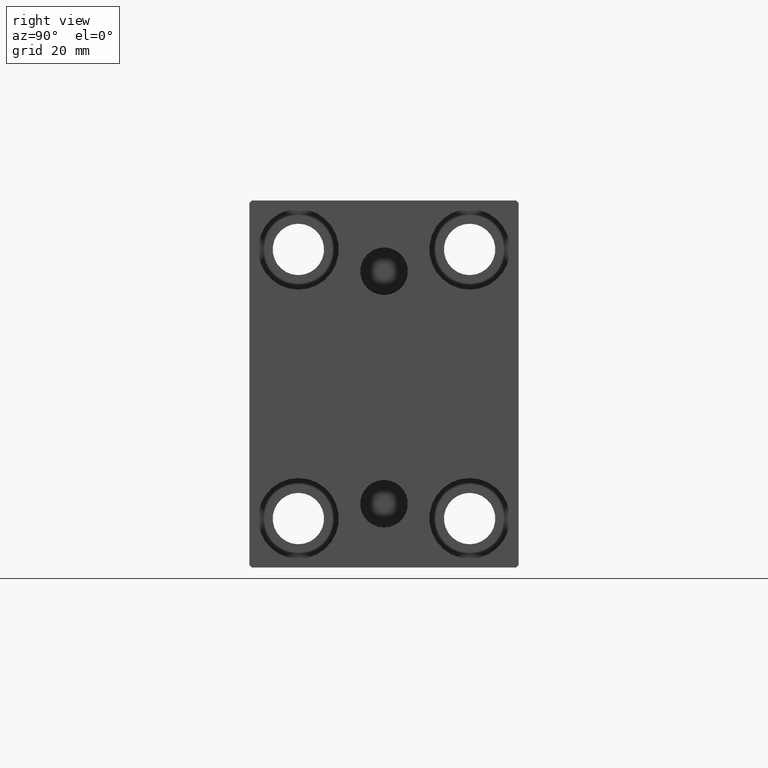
[diagram: clean part render]
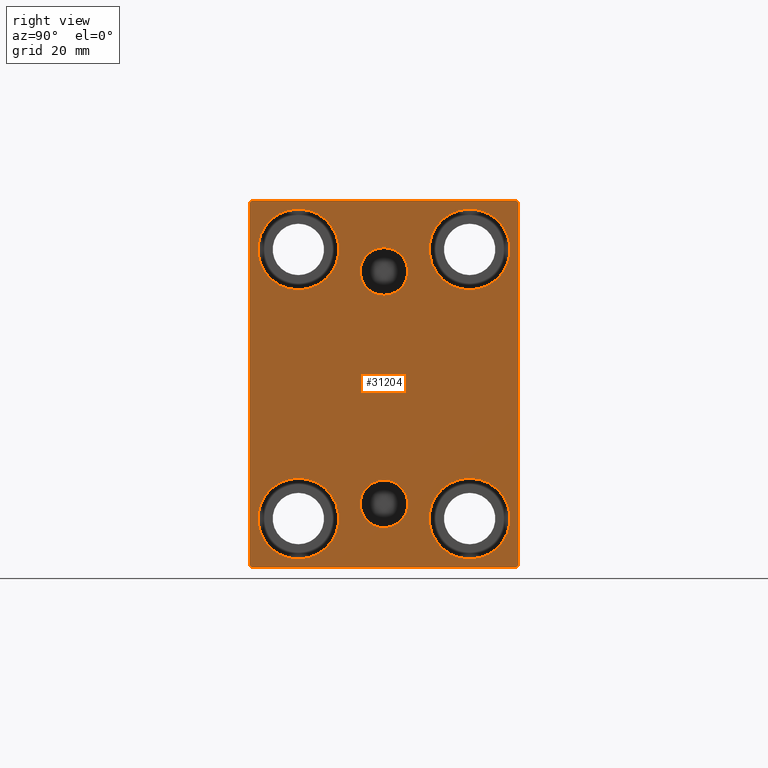
[diagram: same view with one face highlighted and labeled with its STEP entity id]
A machine part, right view. The second image highlights one B-rep face of the part: STEP entity #31204.
In plain terms, the highlighted planar face has unit normal (1, 0, 0).
Its self-contained STEP definition (entity closure, byte-faithful):
#735 = CARTESIAN_POINT ( 'NONE',  ( 105.0000000000000000, -2.976515330312223406E-15, 27.86000000000000654 ) ) ;
#1079 = VERTEX_POINT ( 'NONE', #23952 ) ;
#1270 = ORIENTED_EDGE ( 'NONE', *, *, #16971, .T. ) ;
#1329 = FACE_BOUND ( 'NONE', #34481, .T. ) ;
#1379 = VERTEX_POINT ( 'NONE', #735 ) ;
#1629 = DIRECTION ( 'NONE',  ( -1.000000000000000000, -0.000000000000000000, -0.000000000000000000 ) ) ;
#2001 = EDGE_CURVE ( 'NONE', #34695, #8156, #30826, .T. ) ;
#2019 = DIRECTION ( 'NONE',  ( 0.000000000000000000, 0.000000000000000000, 1.000000000000000000 ) ) ;
#2160 = DIRECTION ( 'NONE',  ( -1.000000000000000000, -0.000000000000000000, -0.000000000000000000 ) ) ;
#2273 = VERTEX_POINT ( 'NONE', #34248 ) ;
#2299 = VERTEX_POINT ( 'NONE', #7359 ) ;
#2326 = CARTESIAN_POINT ( 'NONE',  ( 105.0000000000000000, -27.00000000000001776, -37.50000000000000000 ) ) ;
#2728 = ORIENTED_EDGE ( 'NONE', *, *, #7451, .T. ) ;
#3011 = VERTEX_POINT ( 'NONE', #3513 ) ;
#3021 = AXIS2_PLACEMENT_3D ( 'NONE', #34610, #38127, #7933 ) ;
#3031 = LINE ( 'NONE', #9848, #29011 ) ;
#3513 = CARTESIAN_POINT ( 'NONE',  ( 105.0000000000000000, 27.49999999999999645, 37.00000000000001421 ) ) ;
#3609 = DIRECTION ( 'NONE',  ( -0.000000000000000000, 0.7071067811865474617, 0.7071067811865474617 ) ) ;
#3823 = VECTOR ( 'NONE', #43196, 1000.000000000000000 ) ;
#4236 = CIRCLE ( 'NONE', #40132, 8.250000000000000000 ) ;
#4271 = VECTOR ( 'NONE', #39803, 1000.000000000000000 ) ;
#4377 = ORIENTED_EDGE ( 'NONE', *, *, #29701, .F. ) ;
#4389 = DIRECTION ( 'NONE',  ( -1.000000000000000000, -0.000000000000000000, -0.000000000000000000 ) ) ;
#4403 = VERTEX_POINT ( 'NONE', #7779 ) ;
#4490 = AXIS2_PLACEMENT_3D ( 'NONE', #33883, #16915, #16473 ) ;
#5192 = VERTEX_POINT ( 'NONE', #12503 ) ;
#5251 = EDGE_CURVE ( 'NONE', #34088, #37098, #3031, .T. ) ;
#5339 = DIRECTION ( 'NONE',  ( -1.000000000000000000, -0.000000000000000000, -0.000000000000000000 ) ) ;
#5495 = DIRECTION ( 'NONE',  ( 0.000000000000000000, -0.7071067811865474617, -0.7071067811865474617 ) ) ;
#5705 = LINE ( 'NONE', #8146, #15459 ) ;
#5813 = DIRECTION ( 'NONE',  ( 0.000000000000000000, 0.000000000000000000, -1.000000000000000000 ) ) ;
#6512 = EDGE_CURVE ( 'NONE', #2299, #13516, #36083, .T. ) ;
#7359 = CARTESIAN_POINT ( 'NONE',  ( 105.0000000000000000, 17.50000000000000355, 35.74999999999999289 ) ) ;
#7451 = EDGE_CURVE ( 'NONE', #9869, #43294, #12878, .T. ) ;
#7779 = CARTESIAN_POINT ( 'NONE',  ( 105.0000000000000000, -3.571693674697836683E-15, 18.14000000000000767 ) ) ;
#7933 = DIRECTION ( 'NONE',  ( 0.000000000000000000, 0.000000000000000000, -1.000000000000000000 ) ) ;
#7987 = CIRCLE ( 'NONE', #14354, 8.249999999999992895 ) ;
#8146 = CARTESIAN_POINT ( 'NONE',  ( 105.0000000000000000, -32.25000000000000000, 32.25000000000000000 ) ) ;
#8156 = VERTEX_POINT ( 'NONE', #10918 ) ;
#8463 = CARTESIAN_POINT ( 'NONE',  ( 105.0000000000000000, 3.000384657911015074E-15, -29.35999999999999233 ) ) ;
#8779 = VECTOR ( 'NONE', #26067, 1000.000000000000000 ) ;
#8854 = DIRECTION ( 'NONE',  ( 0.000000000000000000, 0.000000000000000000, 1.000000000000000000 ) ) ;
#9110 = ORIENTED_EDGE ( 'NONE', *, *, #10184, .T. ) ;
#9146 = CIRCLE ( 'NONE', #24636, 8.250000000000000000 ) ;
#9387 = ORIENTED_EDGE ( 'NONE', *, *, #19800, .T. ) ;
#9388 = LINE ( 'NONE', #29443, #4271 ) ;
#9421 = CARTESIAN_POINT ( 'NONE',  ( 105.0000000000000000, 17.50000000000000355, 27.49999999999999645 ) ) ;
#9761 = EDGE_CURVE ( 'NONE', #30367, #2273, #34734, .T. ) ;
#9848 = CARTESIAN_POINT ( 'NONE',  ( 105.0000000000000000, -27.50000000000000355, -37.50000000000000000 ) ) ;
#9869 = VERTEX_POINT ( 'NONE', #17371 ) ;
#9966 = CARTESIAN_POINT ( 'NONE',  ( 105.0000000000000000, 17.50000000000000355, 19.25000000000000000 ) ) ;
#10044 = ORIENTED_EDGE ( 'NONE', *, *, #26462, .F. ) ;
#10045 = ORIENTED_EDGE ( 'NONE', *, *, #42102, .T. ) ;
#10184 = EDGE_CURVE ( 'NONE', #2273, #30367, #7987, .T. ) ;
#10422 = DIRECTION ( 'NONE',  ( -1.000000000000000000, -0.000000000000000000, -0.000000000000000000 ) ) ;
#10614 = EDGE_CURVE ( 'NONE', #42238, #3011, #36374, .T. ) ;
#10872 = DIRECTION ( 'NONE',  ( 0.000000000000000000, 0.000000000000000000, 1.000000000000000000 ) ) ;
#10918 = CARTESIAN_POINT ( 'NONE',  ( 105.0000000000000000, -27.50000000000000355, -37.00000000000000000 ) ) ;
#11231 = FACE_BOUND ( 'NONE', #16061, .T. ) ;
#11304 = DIRECTION ( 'NONE',  ( 0.000000000000000000, 0.000000000000000000, 1.000000000000000000 ) ) ;
#11869 = EDGE_CURVE ( 'NONE', #13516, #2299, #39706, .T. ) ;
#11883 = FACE_BOUND ( 'NONE', #33815, .T. ) ;
#11898 = CIRCLE ( 'NONE', #24603, 4.859999999999999432 ) ;
#11945 = EDGE_CURVE ( 'NONE', #43294, #9869, #17913, .T. ) ;
#12103 = PLANE ( 'NONE',  #3021 ) ;
#12503 = CARTESIAN_POINT ( 'NONE',  ( 105.0000000000000000, -17.50000000000000355, -35.75000000000000711 ) ) ;
#12878 = CIRCLE ( 'NONE', #33991, 8.250000000000000000 ) ;
#13290 = CARTESIAN_POINT ( 'NONE',  ( 105.0000000000000000, 17.49999999999999645, -27.50000000000000355 ) ) ;
#13469 = ORIENTED_EDGE ( 'NONE', *, *, #11869, .T. ) ;
#13516 = VERTEX_POINT ( 'NONE', #9966 ) ;
#14196 = CARTESIAN_POINT ( 'NONE',  ( 105.0000000000000000, 17.50000000000000355, 27.49999999999999645 ) ) ;
#14354 = AXIS2_PLACEMENT_3D ( 'NONE', #31811, #1629, #21475 ) ;
#14609 = DIRECTION ( 'NONE',  ( -1.000000000000000000, -0.000000000000000000, -0.000000000000000000 ) ) ;
#14939 = ORIENTED_EDGE ( 'NONE', *, *, #10614, .T. ) ;
#15414 = FACE_BOUND ( 'NONE', #42286, .T. ) ;
#15459 = VECTOR ( 'NONE', #5495, 1000.000000000000114 ) ;
#15931 = CARTESIAN_POINT ( 'NONE',  ( 105.0000000000000000, -32.25000000000038369, -32.24999999999949551 ) ) ;
#16061 = EDGE_LOOP ( 'NONE', ( #10044, #27662 ) ) ;
#16473 = DIRECTION ( 'NONE',  ( 0.000000000000000000, 0.000000000000000000, -1.000000000000000000 ) ) ;
#16915 = DIRECTION ( 'NONE',  ( 1.000000000000000000, 0.000000000000000000, 0.000000000000000000 ) ) ;
#16952 = CARTESIAN_POINT ( 'NONE',  ( 105.0000000000000000, -27.50000000000000355, 37.50000000000000000 ) ) ;
#16971 = EDGE_CURVE ( 'NONE', #1079, #31392, #25848, .T. ) ;
#17371 = CARTESIAN_POINT ( 'NONE',  ( 105.0000000000000000, 17.49999999999999645, -35.75000000000000711 ) ) ;
#17840 = DIRECTION ( 'NONE',  ( 0.000000000000000000, 0.000000000000000000, 1.000000000000000000 ) ) ;
#17913 = CIRCLE ( 'NONE', #29906, 8.250000000000000000 ) ;
#18219 = VERTEX_POINT ( 'NONE', #8463 ) ;
#18292 = EDGE_CURVE ( 'NONE', #37098, #42238, #20364, .T. ) ;
#18768 = CARTESIAN_POINT ( 'NONE',  ( 105.0000000000000000, 3.000384657911015074E-15, -24.49999999999999289 ) ) ;
#19042 = DIRECTION ( 'NONE',  ( 1.000000000000000000, 0.000000000000000000, 0.000000000000000000 ) ) ;
#19186 = DIRECTION ( 'NONE',  ( 0.000000000000000000, 0.000000000000000000, 1.000000000000000000 ) ) ;
#19800 = EDGE_CURVE ( 'NONE', #42519, #5192, #9146, .T. ) ;
#20290 = CARTESIAN_POINT ( 'NONE',  ( 105.0000000000000000, 27.50000000000000355, -37.50000000000000000 ) ) ;
#20364 = LINE ( 'NONE', #33796, #22487 ) ;
#20633 = ORIENTED_EDGE ( 'NONE', *, *, #6512, .T. ) ;
#21174 = FACE_BOUND ( 'NONE', #38211, .T. ) ;
#21472 = DIRECTION ( 'NONE',  ( -1.000000000000000000, -0.000000000000000000, -0.000000000000000000 ) ) ;
#21475 = DIRECTION ( 'NONE',  ( 0.000000000000000000, 0.000000000000000000, 1.000000000000000000 ) ) ;
#21905 = VECTOR ( 'NONE', #27515, 1000.000000000000000 ) ;
#22040 = FACE_BOUND ( 'NONE', #40020, .T. ) ;
#22074 = DIRECTION ( 'NONE',  ( 1.000000000000000000, 0.000000000000000000, -0.000000000000000000 ) ) ;
#22487 = VECTOR ( 'NONE', #3609, 1000.000000000000114 ) ;
#22776 = EDGE_CURVE ( 'NONE', #18219, #29238, #11898, .T. ) ;
#23294 = ORIENTED_EDGE ( 'NONE', *, *, #22776, .F. ) ;
#23513 = CIRCLE ( 'NONE', #4490, 4.859999999999999432 ) ;
#23826 = EDGE_CURVE ( 'NONE', #31392, #34695, #5705, .T. ) ;
#23952 = CARTESIAN_POINT ( 'NONE',  ( 105.0000000000000000, 26.99999999999999645, 37.50000000000000711 ) ) ;
#24372 = EDGE_CURVE ( 'NONE', #5192, #42519, #4236, .T. ) ;
#24603 = AXIS2_PLACEMENT_3D ( 'NONE', #18768, #22074, #2019 ) ;
#24633 = ORIENTED_EDGE ( 'NONE', *, *, #18292, .T. ) ;
#24636 = AXIS2_PLACEMENT_3D ( 'NONE', #30505, #14609, #10872 ) ;
#24673 = CARTESIAN_POINT ( 'NONE',  ( 105.0000000000000000, -17.49999999999999645, 27.49999999999999645 ) ) ;
#25196 = ORIENTED_EDGE ( 'NONE', *, *, #2001, .T. ) ;
#25622 = AXIS2_PLACEMENT_3D ( 'NONE', #24673, #4389, #17840 ) ;
#25848 = LINE ( 'NONE', #39493, #37119 ) ;
#26020 = EDGE_CURVE ( 'NONE', #3011, #1079, #9388, .T. ) ;
#26067 = DIRECTION ( 'NONE',  ( -0.000000000000000000, 0.7071067811865378028, -0.7071067811865573427 ) ) ;
#26286 = LINE ( 'NONE', #15931, #8779 ) ;
#26288 = CARTESIAN_POINT ( 'NONE',  ( 105.0000000000000000, -17.49999999999999645, 35.74999999999999289 ) ) ;
#26462 = EDGE_CURVE ( 'NONE', #4403, #1379, #40161, .T. ) ;
#26584 = EDGE_LOOP ( 'NONE', ( #1270, #31283, #25196, #10045, #41806, #24633, #14939, #36080 ) ) ;
#27515 = DIRECTION ( 'NONE',  ( 0.000000000000000000, 0.000000000000000000, -1.000000000000000000 ) ) ;
#27662 = ORIENTED_EDGE ( 'NONE', *, *, #35051, .F. ) ;
#28042 = CARTESIAN_POINT ( 'NONE',  ( 105.0000000000000000, -27.00000000000000355, 37.50000000000000000 ) ) ;
#28178 = CARTESIAN_POINT ( 'NONE',  ( 105.0000000000000000, 17.49999999999999645, -19.25000000000000355 ) ) ;
#28908 = CARTESIAN_POINT ( 'NONE',  ( 105.0000000000000000, -17.50000000000000355, -27.50000000000000355 ) ) ;
#29011 = VECTOR ( 'NONE', #36963, 1000.000000000000000 ) ;
#29040 = DIRECTION ( 'NONE',  ( -1.000000000000000000, -0.000000000000000000, -0.000000000000000000 ) ) ;
#29238 = VERTEX_POINT ( 'NONE', #33607 ) ;
#29443 = CARTESIAN_POINT ( 'NONE',  ( 105.0000000000000000, 32.24999999999981526, 32.25000000000025580 ) ) ;
#29701 = EDGE_CURVE ( 'NONE', #29238, #18219, #37462, .T. ) ;
#29906 = AXIS2_PLACEMENT_3D ( 'NONE', #32348, #2160, #42479 ) ;
#30367 = VERTEX_POINT ( 'NONE', #26288 ) ;
#30505 = CARTESIAN_POINT ( 'NONE',  ( 105.0000000000000000, -17.50000000000000355, -27.50000000000000355 ) ) ;
#30826 = LINE ( 'NONE', #16952, #21905 ) ;
#31128 = AXIS2_PLACEMENT_3D ( 'NONE', #38572, #41886, #19186 ) ;
#31152 = AXIS2_PLACEMENT_3D ( 'NONE', #14196, #21472, #11304 ) ;
#31204 = ADVANCED_FACE ( 'NONE', ( #11231, #11883, #1329, #21174, #22040, #15414, #42295 ), #12103, .T. ) ;
#31283 = ORIENTED_EDGE ( 'NONE', *, *, #23826, .T. ) ;
#31392 = VERTEX_POINT ( 'NONE', #28042 ) ;
#31811 = CARTESIAN_POINT ( 'NONE',  ( 105.0000000000000000, -17.49999999999999645, 27.49999999999999645 ) ) ;
#32348 = CARTESIAN_POINT ( 'NONE',  ( 105.0000000000000000, 17.49999999999999645, -27.50000000000000355 ) ) ;
#32410 = CARTESIAN_POINT ( 'NONE',  ( 105.0000000000000000, 27.50000000000000355, -36.99999999999998579 ) ) ;
#33223 = DIRECTION ( 'NONE',  ( 0.000000000000000000, 0.000000000000000000, 1.000000000000000000 ) ) ;
#33276 = CARTESIAN_POINT ( 'NONE',  ( 105.0000000000000000, -27.50000000000000355, 37.00000000000000000 ) ) ;
#33566 = ORIENTED_EDGE ( 'NONE', *, *, #9761, .T. ) ;
#33607 = CARTESIAN_POINT ( 'NONE',  ( 105.0000000000000000, 3.595563002296627957E-15, -19.63999999999999346 ) ) ;
#33796 = CARTESIAN_POINT ( 'NONE',  ( 105.0000000000000000, 32.24999999999999289, -32.24999999999999289 ) ) ;
#33815 = EDGE_LOOP ( 'NONE', ( #23294, #4377 ) ) ;
#33883 = CARTESIAN_POINT ( 'NONE',  ( 105.0000000000000000, -3.571693674697836683E-15, 23.00000000000000711 ) ) ;
#33991 = AXIS2_PLACEMENT_3D ( 'NONE', #13290, #10422, #40183 ) ;
#34088 = VERTEX_POINT ( 'NONE', #2326 ) ;
#34248 = CARTESIAN_POINT ( 'NONE',  ( 105.0000000000000000, -17.49999999999999645, 19.25000000000000000 ) ) ;
#34481 = EDGE_LOOP ( 'NONE', ( #2728, #37893 ) ) ;
#34610 = CARTESIAN_POINT ( 'NONE',  ( 105.0000000000000000, 0.000000000000000000, 0.000000000000000000 ) ) ;
#34695 = VERTEX_POINT ( 'NONE', #33276 ) ;
#34734 = CIRCLE ( 'NONE', #25622, 8.249999999999992895 ) ;
#35051 = EDGE_CURVE ( 'NONE', #1379, #4403, #23513, .T. ) ;
#35489 = AXIS2_PLACEMENT_3D ( 'NONE', #9421, #29040, #33223 ) ;
#36080 = ORIENTED_EDGE ( 'NONE', *, *, #26020, .T. ) ;
#36083 = CIRCLE ( 'NONE', #31152, 8.249999999999992895 ) ;
#36374 = LINE ( 'NONE', #20290, #3823 ) ;
#36963 = DIRECTION ( 'NONE',  ( 0.000000000000000000, 1.000000000000000000, 0.000000000000000000 ) ) ;
#37098 = VERTEX_POINT ( 'NONE', #40128 ) ;
#37119 = VECTOR ( 'NONE', #42794, 1000.000000000000000 ) ;
#37462 = CIRCLE ( 'NONE', #31128, 4.859999999999999432 ) ;
#37678 = CARTESIAN_POINT ( 'NONE',  ( 105.0000000000000000, -17.50000000000000355, -19.25000000000000355 ) ) ;
#37893 = ORIENTED_EDGE ( 'NONE', *, *, #11945, .T. ) ;
#38127 = DIRECTION ( 'NONE',  ( 1.000000000000000000, 0.000000000000000000, 0.000000000000000000 ) ) ;
#38211 = EDGE_LOOP ( 'NONE', ( #9110, #33566 ) ) ;
#38572 = CARTESIAN_POINT ( 'NONE',  ( 105.0000000000000000, 3.000384657911015074E-15, -24.49999999999999289 ) ) ;
#39087 = CARTESIAN_POINT ( 'NONE',  ( 105.0000000000000000, -3.571693674697836683E-15, 23.00000000000000711 ) ) ;
#39493 = CARTESIAN_POINT ( 'NONE',  ( 105.0000000000000000, 27.49999999999999645, 37.50000000000000711 ) ) ;
#39706 = CIRCLE ( 'NONE', #35489, 8.249999999999992895 ) ;
#39803 = DIRECTION ( 'NONE',  ( -0.000000000000000000, -0.7071067811865524577, 0.7071067811865426878 ) ) ;
#40020 = EDGE_LOOP ( 'NONE', ( #13469, #20633 ) ) ;
#40128 = CARTESIAN_POINT ( 'NONE',  ( 105.0000000000000000, 26.99999999999998934, -37.50000000000000000 ) ) ;
#40132 = AXIS2_PLACEMENT_3D ( 'NONE', #28908, #5339, #8854 ) ;
#40161 = CIRCLE ( 'NONE', #40887, 4.859999999999999432 ) ;
#40183 = DIRECTION ( 'NONE',  ( 0.000000000000000000, 0.000000000000000000, 1.000000000000000000 ) ) ;
#40794 = ORIENTED_EDGE ( 'NONE', *, *, #24372, .T. ) ;
#40887 = AXIS2_PLACEMENT_3D ( 'NONE', #39087, #19042, #5813 ) ;
#41806 = ORIENTED_EDGE ( 'NONE', *, *, #5251, .T. ) ;
#41886 = DIRECTION ( 'NONE',  ( 1.000000000000000000, 0.000000000000000000, -0.000000000000000000 ) ) ;
#42102 = EDGE_CURVE ( 'NONE', #8156, #34088, #26286, .T. ) ;
#42238 = VERTEX_POINT ( 'NONE', #32410 ) ;
#42286 = EDGE_LOOP ( 'NONE', ( #40794, #9387 ) ) ;
#42295 = FACE_OUTER_BOUND ( 'NONE', #26584, .T. ) ;
#42479 = DIRECTION ( 'NONE',  ( 0.000000000000000000, 0.000000000000000000, 1.000000000000000000 ) ) ;
#42519 = VERTEX_POINT ( 'NONE', #37678 ) ;
#42794 = DIRECTION ( 'NONE',  ( 0.000000000000000000, -1.000000000000000000, -1.261617073437677999E-16 ) ) ;
#43196 = DIRECTION ( 'NONE',  ( 0.000000000000000000, -9.251858538542970348E-17, 1.000000000000000000 ) ) ;
#43294 = VERTEX_POINT ( 'NONE', #28178 ) ;